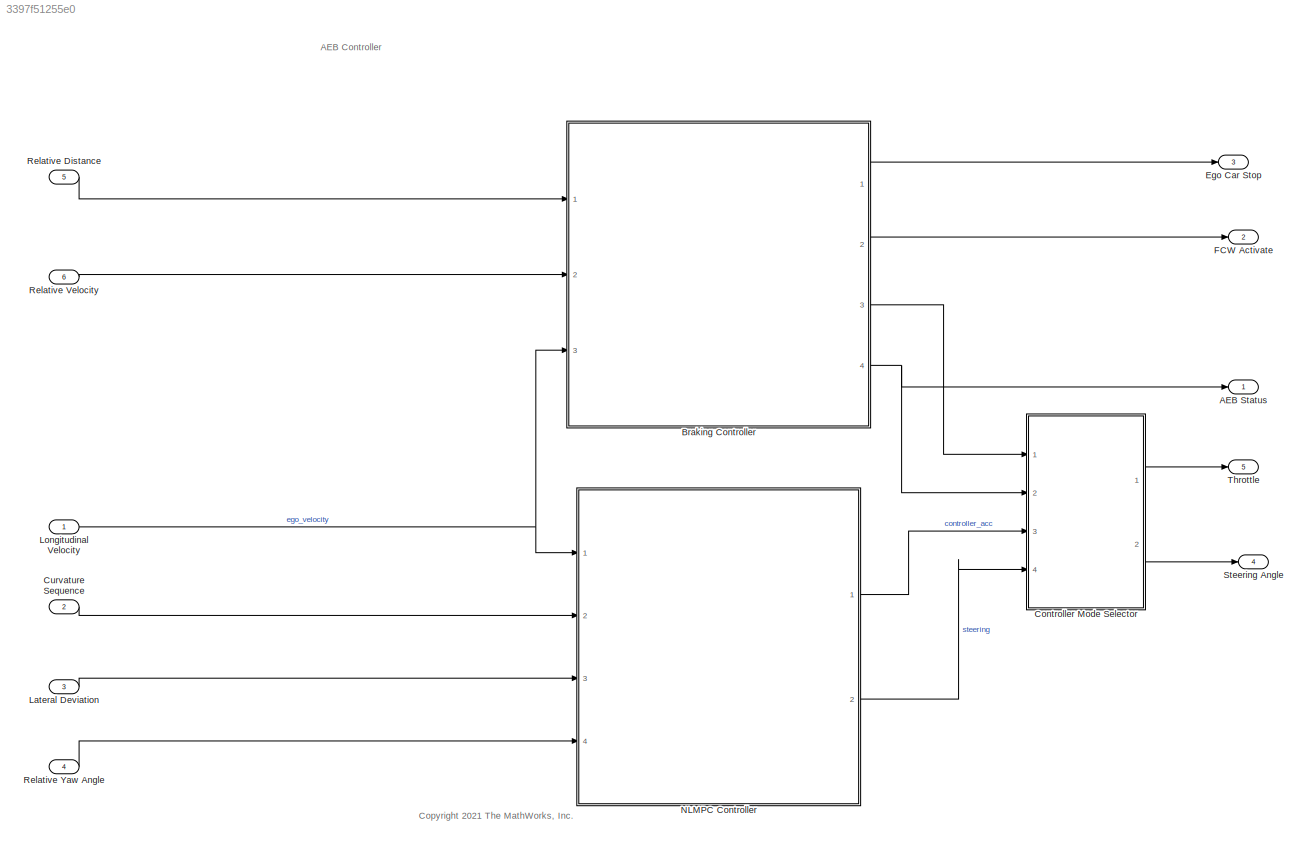
MODEL slx_3397f51255e0
KIND model
CONFIG AbsTol = auto
CONFIG EnableMultiTasking = off
CONFIG FixedStep = AEBControllerStepSize
CONFIG MaxStep = auto
CONFIG MinStep = auto
CONFIG RelTol = 1e-3
CONFIG SampleTimeConstraint = Unconstrained
CONFIG SolverName = FixedStepAuto
CONFIG StartTime = 0.0
CONFIG StopTime = scenario.StopTime
BLOCK [Outport] AEB Status
  OutDataTypeStr = uint8
  PortDimensions = 1
  SamplingMode = Sample based
  SignalType = real
  VectorParamsAs1DForOutWhenUnconnected = off
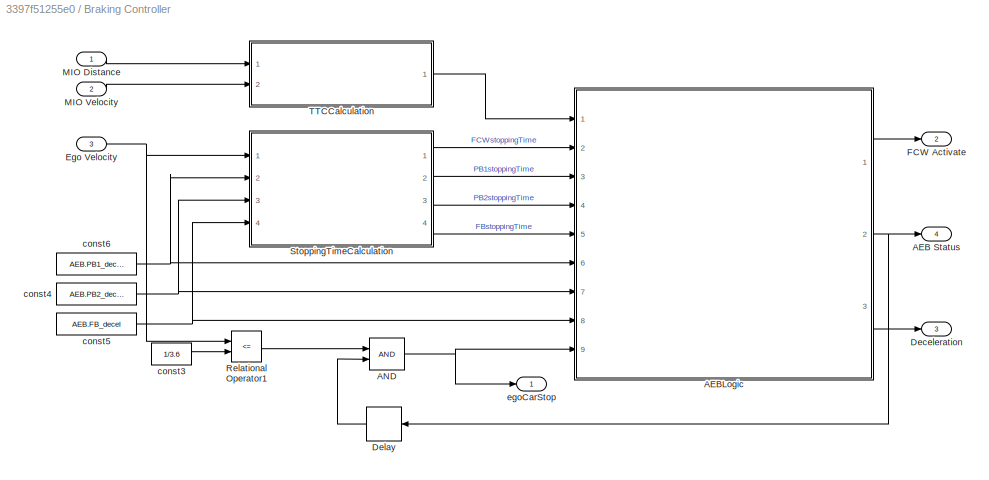
BLOCK [SubSystem] Braking Controller
  Ports = [3, 4]
  RequestExecContextInheritance = off
BLOCK [Outport] Braking Controller/AEB Status
  Port = 4
  VectorParamsAs1DForOutWhenUnconnected = off
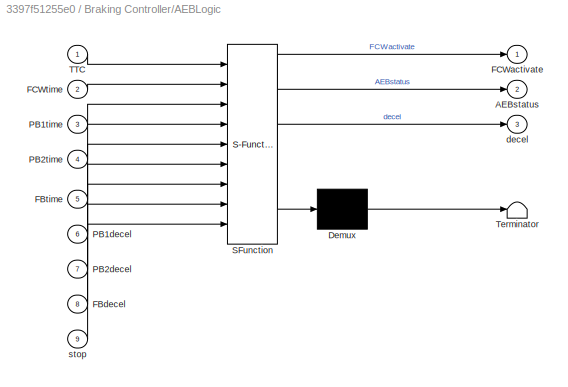
BLOCK [SubSystem] Braking Controller/AEBLogic
  ErrorFcn = Stateflow.Translate.translate
  PermitHierarchicalResolution = ExplicitOnly
  Ports = [9, 3]
  RequestExecContextInheritance = off
  SFBlockType = Chart
  TreatAsAtomicUnit = on
BLOCK [Demux] Braking Controller/AEBLogic/ Demux 
  Outputs = 1
  Ports = [1, 1]
BLOCK [S-Function] Braking Controller/AEBLogic/ SFunction 
  EnableBusSupport = off
  FunctionName = sf_sfun
  PortCounts = [9 4]
  Ports = [9, 4]
  SFcnIsStateOwnerBlock = off
  SFunctionDeploymentMode = off
  Tag = Stateflow S-Function 5
BLOCK [Terminator] Braking Controller/AEBLogic/ Terminator 
BLOCK [Outport] Braking Controller/AEBLogic/AEBstatus
  Port = 2
  VectorParamsAs1DForOutWhenUnconnected = off
BLOCK [Inport] Braking Controller/AEBLogic/FBdecel
  Port = 8
BLOCK [Inport] Braking Controller/AEBLogic/FBtime
  Port = 5
BLOCK [Outport] Braking Controller/AEBLogic/FCWactivate
  VectorParamsAs1DForOutWhenUnconnected = off
BLOCK [Inport] Braking Controller/AEBLogic/FCWtime
  Port = 2
BLOCK [Inport] Braking Controller/AEBLogic/PB1decel
  Port = 6
BLOCK [Inport] Braking Controller/AEBLogic/PB1time
  Port = 3
BLOCK [Inport] Braking Controller/AEBLogic/PB2decel
  Port = 7
BLOCK [Inport] Braking Controller/AEBLogic/PB2time
  Port = 4
BLOCK [Inport] Braking Controller/AEBLogic/TTC
BLOCK [Outport] Braking Controller/AEBLogic/decel
  Port = 3
  VectorParamsAs1DForOutWhenUnconnected = off
BLOCK [Inport] Braking Controller/AEBLogic/stop
  Port = 9
BLOCK [Logic] Braking Controller/AND
  AllPortsSameDT = off
  IconShape = distinctive
  OutDataTypeStr = boolean
  Ports = [2, 1]
BLOCK [Outport] Braking Controller/Deceleration
  OutDataTypeStr = double
  Port = 3
  VectorParamsAs1DForOutWhenUnconnected = off
BLOCK [Delay] Braking Controller/Delay
  DelayLength = 1
  InputPortMap = u0
  Ports = [1, 1]
BLOCK [Inport] Braking Controller/Ego Velocity
  Port = 3
BLOCK [Outport] Braking Controller/FCW Activate
  Port = 2
  VectorParamsAs1DForOutWhenUnconnected = off
BLOCK [Inport] Braking Controller/MIO Distance
BLOCK [Inport] Braking Controller/MIO Velocity
  Port = 2
BLOCK [RelationalOperator] Braking Controller/Relational Operator1
  InputSameDT = off
  Operator = <=
  OutDataTypeStr = boolean
  Ports = [2, 1]
  RndMeth = Simplest
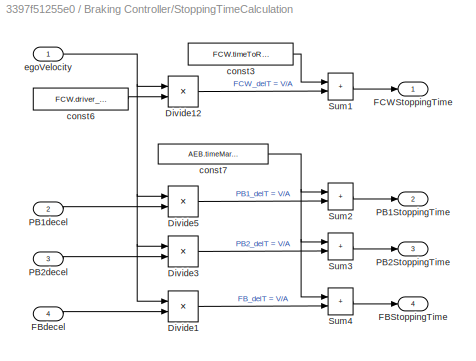
BLOCK [SubSystem] Braking Controller/StoppingTimeCalculation
  Ports = [4, 4]
  RequestExecContextInheritance = off
BLOCK [Product] Braking Controller/StoppingTimeCalculation/Divide1
  Inputs = */
  Ports = [2, 1]
BLOCK [Product] Braking Controller/StoppingTimeCalculation/Divide12
  Inputs = */
  Ports = [2, 1]
BLOCK [Product] Braking Controller/StoppingTimeCalculation/Divide3
  Inputs = */
  Ports = [2, 1]
BLOCK [Product] Braking Controller/StoppingTimeCalculation/Divide5
  Inputs = */
  Ports = [2, 1]
BLOCK [Outport] Braking Controller/StoppingTimeCalculation/FBStoppingTime
  Port = 4
  VectorParamsAs1DForOutWhenUnconnected = off
BLOCK [Inport] Braking Controller/StoppingTimeCalculation/FBdecel
  Port = 4
BLOCK [Outport] Braking Controller/StoppingTimeCalculation/FCWStoppingTime
  VectorParamsAs1DForOutWhenUnconnected = off
BLOCK [Outport] Braking Controller/StoppingTimeCalculation/PB1StoppingTime
  Port = 2
  VectorParamsAs1DForOutWhenUnconnected = off
BLOCK [Inport] Braking Controller/StoppingTimeCalculation/PB1decel
  Port = 2
BLOCK [Outport] Braking Controller/StoppingTimeCalculation/PB2StoppingTime
  Port = 3
  VectorParamsAs1DForOutWhenUnconnected = off
BLOCK [Inport] Braking Controller/StoppingTimeCalculation/PB2decel
  Port = 3
BLOCK [Sum] Braking Controller/StoppingTimeCalculation/Sum1
  IconShape = rectangular
  Ports = [2, 1]
BLOCK [Sum] Braking Controller/StoppingTimeCalculation/Sum2
  IconShape = rectangular
  Ports = [2, 1]
BLOCK [Sum] Braking Controller/StoppingTimeCalculation/Sum3
  IconShape = rectangular
  Ports = [2, 1]
BLOCK [Sum] Braking Controller/StoppingTimeCalculation/Sum4
  IconShape = rectangular
  Ports = [2, 1]
BLOCK [Constant] Braking Controller/StoppingTimeCalculation/const3
  SampleTime = -1
  Value = FCW.timeToReact
BLOCK [Constant] Braking Controller/StoppingTimeCalculation/const6
  SampleTime = -1
  Value = FCW.driver_decel
BLOCK [Constant] Braking Controller/StoppingTimeCalculation/const7
  SampleTime = -1
  Value = AEB.timeMargin
BLOCK [Inport] Braking Controller/StoppingTimeCalculation/egoVelocity
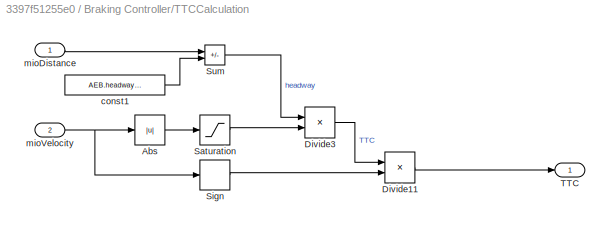
BLOCK [SubSystem] Braking Controller/TTCCalculation
  Ports = [2, 1]
  RequestExecContextInheritance = off
BLOCK [Abs] Braking Controller/TTCCalculation/Abs
  SaturateOnIntegerOverflow = off
BLOCK [Product] Braking Controller/TTCCalculation/Divide11
  Inputs = **
  Ports = [2, 1]
BLOCK [Product] Braking Controller/TTCCalculation/Divide3
  Inputs = */
  Ports = [2, 1]
BLOCK [Saturate] Braking Controller/TTCCalculation/Saturation
  LowerLimit = 0.01
  UpperLimit = 100
BLOCK [Signum] Braking Controller/TTCCalculation/Sign
BLOCK [Sum] Braking Controller/TTCCalculation/Sum
  IconShape = rectangular
  Inputs = +-
  Ports = [2, 1]
BLOCK [Outport] Braking Controller/TTCCalculation/TTC
  VectorParamsAs1DForOutWhenUnconnected = off
BLOCK [Constant] Braking Controller/TTCCalculation/const1
  SampleTime = -1
  Value = AEB.headwayOffset
BLOCK [Inport] Braking Controller/TTCCalculation/mioDistance
BLOCK [Inport] Braking Controller/TTCCalculation/mioVelocity
  Port = 2
BLOCK [Constant] Braking Controller/const3
  SampleTime = -1
  Value = 1/3.6
BLOCK [Constant] Braking Controller/const4
  SampleTime = -1
  Value = AEB.PB2_decel
BLOCK [Constant] Braking Controller/const5
  SampleTime = -1
  Value = AEB.FB_decel
BLOCK [Constant] Braking Controller/const6
  SampleTime = -1
  Value = AEB.PB1_decel
BLOCK [Outport] Braking Controller/egoCarStop
  VectorParamsAs1DForOutWhenUnconnected = off
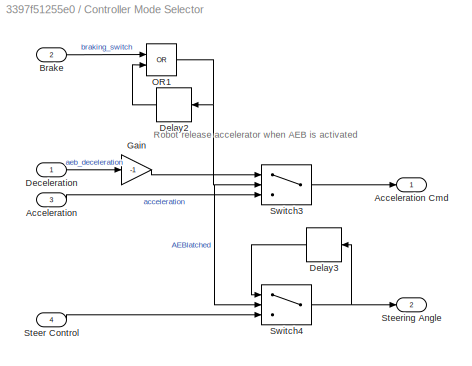
BLOCK [SubSystem] Controller Mode Selector
  Ports = [4, 2]
  RequestExecContextInheritance = off
BLOCK [Inport] Controller Mode Selector/Acceleration
  Port = 3
BLOCK [Outport] Controller Mode Selector/Acceleration Cmd
BLOCK [Inport] Controller Mode Selector/Brake
  Port = 2
BLOCK [Inport] Controller Mode Selector/Deceleration
BLOCK [Delay] Controller Mode Selector/Delay2
  DelayLength = 1
  InputPortMap = u0
  Ports = [1, 1]
BLOCK [Delay] Controller Mode Selector/Delay3
  DelayLength = 1
  InputPortMap = u0
  Ports = [1, 1]
BLOCK [Gain] Controller Mode Selector/Gain
  Gain = -1
BLOCK [Logic] Controller Mode Selector/OR1
  AllPortsSameDT = off
  IconShape = distinctive
  Operator = OR
  OutDataTypeStr = boolean
  Ports = [2, 1]
BLOCK [Inport] Controller Mode Selector/Steer Control
  Port = 4
BLOCK [Outport] Controller Mode Selector/Steering Angle
  Port = 2
BLOCK [Switch] Controller Mode Selector/Switch3
  Criteria = u2 ~= 0
  InputSameDT = off
  SaturateOnIntegerOverflow = off
BLOCK [Switch] Controller Mode Selector/Switch4
  Criteria = u2 ~= 0
  InputSameDT = off
  SaturateOnIntegerOverflow = off
BLOCK [Inport] Curvature Sequence
  Port = 2
BLOCK [Outport] Ego Car Stop
  Port = 3
  PortDimensions = 1
  SamplingMode = Sample based
  SignalType = real
  VectorParamsAs1DForOutWhenUnconnected = off
BLOCK [Outport] FCW Activate
  OutDataTypeStr = uint8
  Port = 2
  PortDimensions = 1
  SamplingMode = Sample based
  SignalType = real
  VectorParamsAs1DForOutWhenUnconnected = off
BLOCK [Inport] Lateral Deviation
  Port = 3
BLOCK [Inport] Longitudinal Velocity
  OutDataTypeStr = double
  PortDimensions = 1
  SamplingMode = Sample based
  SignalType = real
BLOCK [SubSystem] NLMPC Controller
  Ports = [4, 2]
  ReferencedSubsystem = NLMPCController
  RequestExecContextInheritance = off
  VariantControl = controller_type ==1
BLOCK [Inport] Relative Distance
  Port = 5
BLOCK [Inport] Relative Velocity
  Port = 6
BLOCK [Inport] Relative Yaw Angle
  Port = 4
BLOCK [Outport] Steering Angle
  Port = 4
BLOCK [Outport] Throttle 
  OutDataTypeStr = double
  Port = 5
  PortDimensions = 1
  SamplingMode = Sample based
  SignalType = real
  VectorParamsAs1DForOutWhenUnconnected = off
ANNOTATION (root): AEB Controller
ANNOTATION (root): <copyright redacted>
ANNOTATION Controller Mode Selector: Robot release accelerator when AEB is activated
LINE Braking Controller/AEBLogic:1 -> Braking Controller/FCW Activate:1
NET Braking Controller/AEBLogic:2 -> Braking Controller/AEB Status:1, Braking Controller/Delay:1
LINE Braking Controller/AEBLogic:3 -> Braking Controller/Deceleration:1
NET Braking Controller/AND:1 -> Braking Controller/AEBLogic:9, Braking Controller/egoCarStop:1
LINE Braking Controller/Delay:1 -> Braking Controller/AND:2
NET Braking Controller/Ego Velocity:1 -> Braking Controller/Relational Operator1:1, Braking Controller/StoppingTimeCalculation:1
LINE Braking Controller/MIO Distance:1 -> Braking Controller/TTCCalculation:1
LINE Braking Controller/MIO Velocity:1 -> Braking Controller/TTCCalculation:2
LINE Braking Controller/Relational Operator1:1 -> Braking Controller/AND:1
LINE Braking Controller/StoppingTimeCalculation/Divide12:1 -> Braking Controller/StoppingTimeCalculation/Sum1:2
LINE Braking Controller/StoppingTimeCalculation/Divide1:1 -> Braking Controller/StoppingTimeCalculation/Sum4:2
LINE Braking Controller/StoppingTimeCalculation/Divide3:1 -> Braking Controller/StoppingTimeCalculation/Sum3:2
LINE Braking Controller/StoppingTimeCalculation/Divide5:1 -> Braking Controller/StoppingTimeCalculation/Sum2:2
LINE Braking Controller/StoppingTimeCalculation/FBdecel:1 -> Braking Controller/StoppingTimeCalculation/Divide1:2
LINE Braking Controller/StoppingTimeCalculation/PB1decel:1 -> Braking Controller/StoppingTimeCalculation/Divide5:2
LINE Braking Controller/StoppingTimeCalculation/PB2decel:1 -> Braking Controller/StoppingTimeCalculation/Divide3:2
LINE Braking Controller/StoppingTimeCalculation/Sum1:1 -> Braking Controller/StoppingTimeCalculation/FCWStoppingTime:1
LINE Braking Controller/StoppingTimeCalculation/Sum2:1 -> Braking Controller/StoppingTimeCalculation/PB1StoppingTime:1
LINE Braking Controller/StoppingTimeCalculation/Sum3:1 -> Braking Controller/StoppingTimeCalculation/PB2StoppingTime:1
LINE Braking Controller/StoppingTimeCalculation/Sum4:1 -> Braking Controller/StoppingTimeCalculation/FBStoppingTime:1
LINE Braking Controller/StoppingTimeCalculation/const3:1 -> Braking Controller/StoppingTimeCalculation/Sum1:1
LINE Braking Controller/StoppingTimeCalculation/const6:1 -> Braking Controller/StoppingTimeCalculation/Divide12:2
NET Braking Controller/StoppingTimeCalculation/const7:1 -> Braking Controller/StoppingTimeCalculation/Sum2:1, Braking Controller/StoppingTimeCalculation/Sum3:1, Braking Controller/StoppingTimeCalculation/Sum4:1
NET Braking Controller/StoppingTimeCalculation/egoVelocity:1 -> Braking Controller/StoppingTimeCalculation/Divide12:1, Braking Controller/StoppingTimeCalculation/Divide1:1, Braking Controller/StoppingTimeCalculation/Divide3:1, Braking Controller/StoppingTimeCalculation/Divide5:1
LINE Braking Controller/StoppingTimeCalculation:1 -> Braking Controller/AEBLogic:2
LINE Braking Controller/StoppingTimeCalculation:2 -> Braking Controller/AEBLogic:3
LINE Braking Controller/StoppingTimeCalculation:3 -> Braking Controller/AEBLogic:4
LINE Braking Controller/StoppingTimeCalculation:4 -> Braking Controller/AEBLogic:5
LINE Braking Controller/TTCCalculation/Abs:1 -> Braking Controller/TTCCalculation/Saturation:1
LINE Braking Controller/TTCCalculation/Divide11:1 -> Braking Controller/TTCCalculation/TTC:1
LINE Braking Controller/TTCCalculation/Divide3:1 -> Braking Controller/TTCCalculation/Divide11:1
LINE Braking Controller/TTCCalculation/Saturation:1 -> Braking Controller/TTCCalculation/Divide3:2
LINE Braking Controller/TTCCalculation/Sign:1 -> Braking Controller/TTCCalculation/Divide11:2
LINE Braking Controller/TTCCalculation/Sum:1 -> Braking Controller/TTCCalculation/Divide3:1
LINE Braking Controller/TTCCalculation/const1:1 -> Braking Controller/TTCCalculation/Sum:2
LINE Braking Controller/TTCCalculation/mioDistance:1 -> Braking Controller/TTCCalculation/Sum:1
NET Braking Controller/TTCCalculation/mioVelocity:1 -> Braking Controller/TTCCalculation/Abs:1, Braking Controller/TTCCalculation/Sign:1
LINE Braking Controller/TTCCalculation:1 -> Braking Controller/AEBLogic:1
LINE Braking Controller/const3:1 -> Braking Controller/Relational Operator1:2
NET Braking Controller/const4:1 -> Braking Controller/AEBLogic:7, Braking Controller/StoppingTimeCalculation:3
NET Braking Controller/const5:1 -> Braking Controller/AEBLogic:8, Braking Controller/StoppingTimeCalculation:4
NET Braking Controller/const6:1 -> Braking Controller/AEBLogic:6, Braking Controller/StoppingTimeCalculation:2
LINE Braking Controller:1 -> Ego Car Stop:1
LINE Braking Controller:2 -> FCW Activate:1
LINE Braking Controller:3 -> Controller Mode Selector:1
NET Braking Controller:4 -> AEB Status:1, Controller Mode Selector:2
LINE Controller Mode Selector/Acceleration:1 -> Controller Mode Selector/Switch3:3
LINE Controller Mode Selector/Brake:1 -> Controller Mode Selector/OR1:1
LINE Controller Mode Selector/Deceleration:1 -> Controller Mode Selector/Gain:1
LINE Controller Mode Selector/Delay2:1 -> Controller Mode Selector/OR1:2
LINE Controller Mode Selector/Delay3:1 -> Controller Mode Selector/Switch4:1
LINE Controller Mode Selector/Gain:1 -> Controller Mode Selector/Switch3:1
NET Controller Mode Selector/OR1:1 -> Controller Mode Selector/Delay2:1, Controller Mode Selector/Switch3:2, Controller Mode Selector/Switch4:2
LINE Controller Mode Selector/Steer Control:1 -> Controller Mode Selector/Switch4:3
LINE Controller Mode Selector/Switch3:1 -> Controller Mode Selector/Acceleration Cmd:1
NET Controller Mode Selector/Switch4:1 -> Controller Mode Selector/Delay3:1, Controller Mode Selector/Steering Angle:1
LINE Controller Mode Selector:1 -> Throttle :1
LINE Controller Mode Selector:2 -> Steering Angle:1
LINE Curvature Sequence:1 -> NLMPC Controller:2
LINE Lateral Deviation:1 -> NLMPC Controller:3
NET Longitudinal Velocity:1 -> Braking Controller:3, NLMPC Controller:1
LINE NLMPC Controller:1 -> Controller Mode Selector:3
LINE NLMPC Controller:2 -> Controller Mode Selector:4
LINE Relative Distance:1 -> Braking Controller:1
LINE Relative Velocity:1 -> Braking Controller:2
LINE Relative Yaw Angle:1 -> NLMPC Controller:4
note: NET lines group one-source signal fan-out (src -> all destinations, sorted); 1:1 wires keep LINE
CHART Braking Controller/AEBLogic states=6 transitions=9
  STATE_LABEL 'FCW/AEB Logic'
  STATE_LABEL 'Default\nentry: AEBstatus = 0;\n FCWactivate = 0;\n decel = 0;\n'
  STATE_LABEL 'FCW\nentry: AEBstatus = 0;\n FCWactivate = 1;\n decel = 0;\n'
  STATE_LABEL 'Partial_Braking1\nentry: AEBstatus = 1;\n FCWactivate = 1;\n decel = PB1decel;\n'
  STATE_LABEL 'Full_Braking\nentry: AEBstatus = 3;\n FCWactivate = 1;\n decel = FBdecel;\n'
  STATE_LABEL 'Partial_Braking2\nentry: AEBstatus = 2;\n FCWactivate = 1;\n decel = PB2decel;\n'
CHART  states=0 transitions=0
